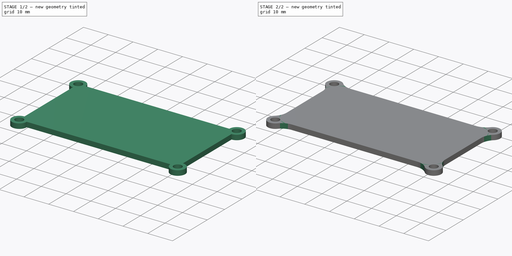
[diagram: build sequence overview — one tinted view per stage of 2, left to right]
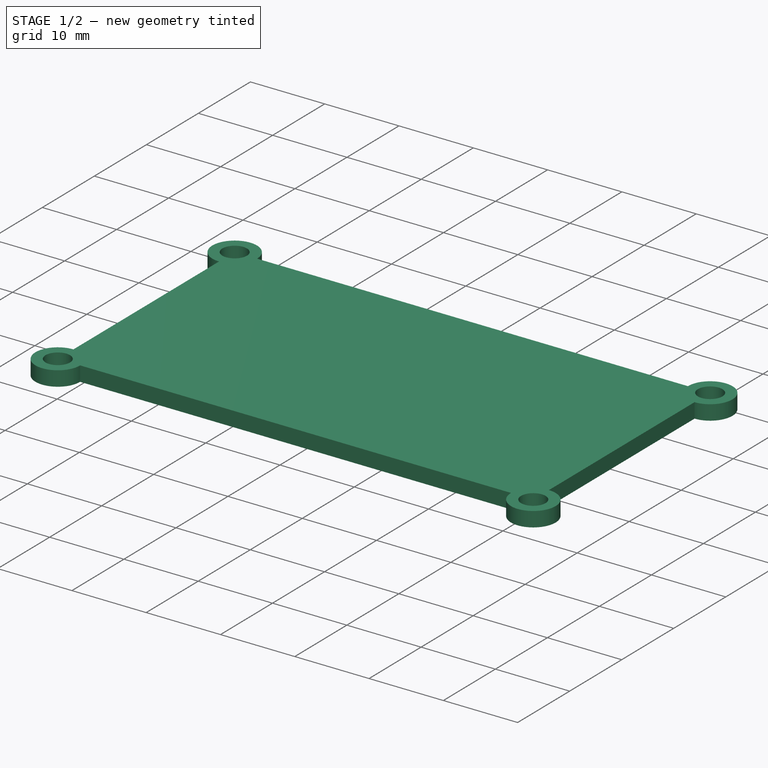
[diagram: stage 1 of 2 — iso view after this stage's code; geometry added in this stage tinted green]
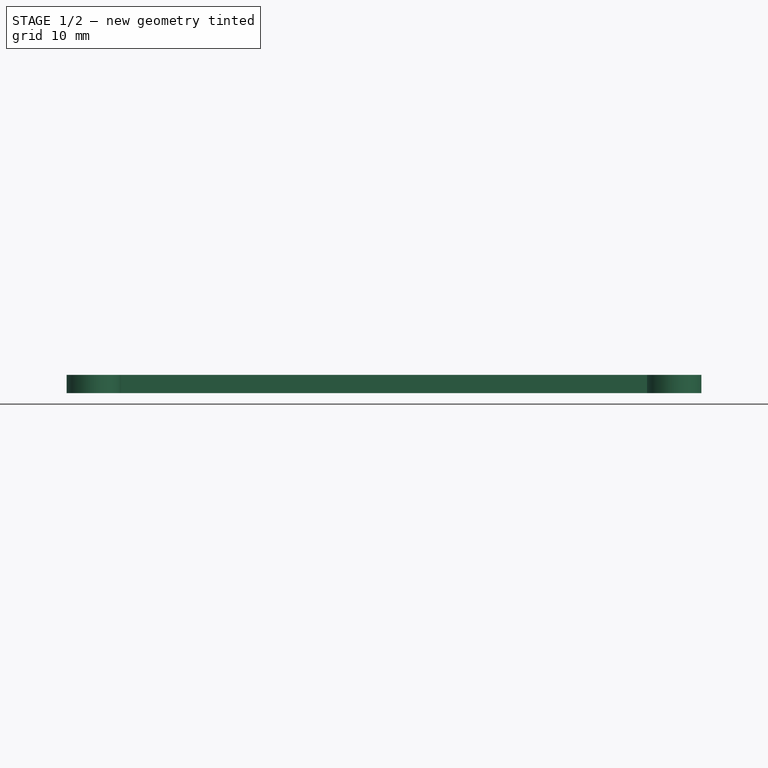
[diagram: stage 1 of 2 — front view after this stage's code; geometry added in this stage tinted green]
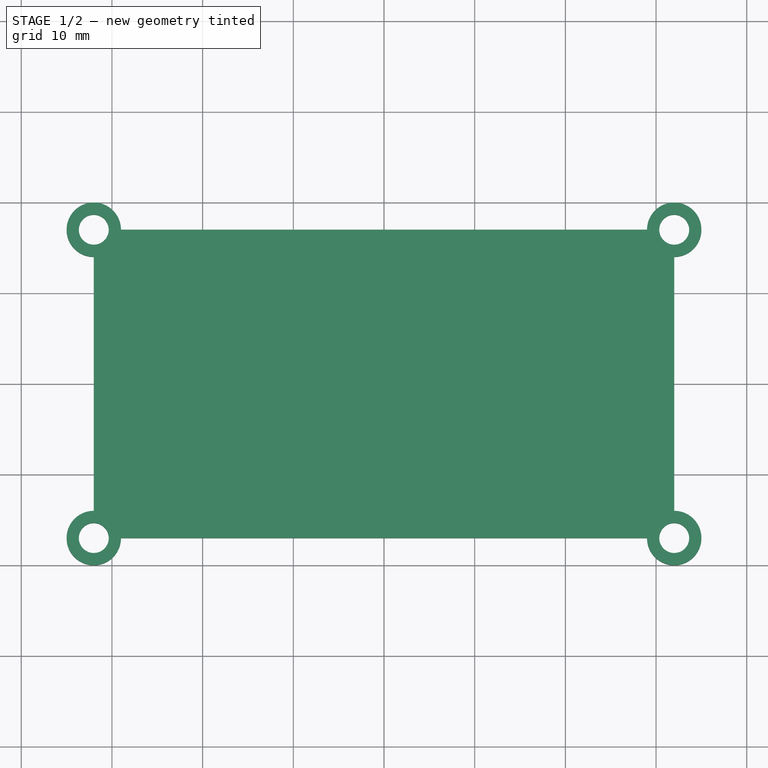
[diagram: stage 1 of 2 — top view after this stage's code; geometry added in this stage tinted green]
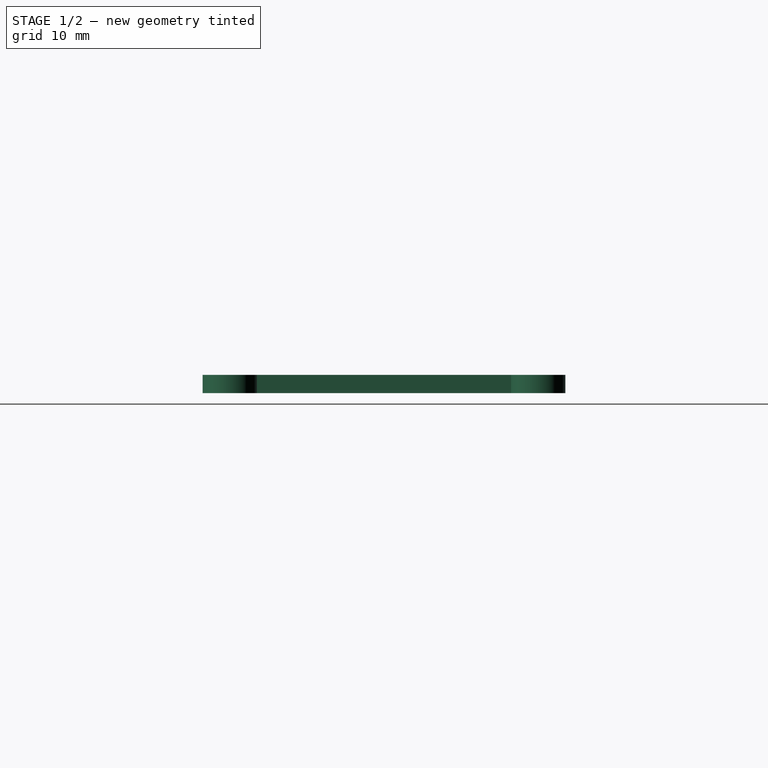
[diagram: stage 1 of 2 — right view after this stage's code; geometry added in this stage tinted green]
FCSTD DOCUMENT  (FreeCAD 0.16R6707 (Git))
Label: BatteryMount
License: All rights reserved
LicenseURL: http://en.wikipedia.org/wiki/All_rights_reserved
objects: Sketcher::SketchObject×1, PartDesign::Pad×1, PartDesign::Fillet×1
note: 4 computed .brp shape members not serialized (recipe doc carries the construction recipe); baked Part::Feature solids carry a one-line shape summary decoded from their .brp

FEATURE [Sketcher::SketchObject] Sketch
  sketch-geometry (16):
    g0: LineSegment [constr] StartX=-32 StartY=17 StartZ=0 EndX=32 EndY=17 EndZ=0
    g1: LineSegment [constr] StartX=32 StartY=17 StartZ=0 EndX=32 EndY=-17 EndZ=0
    g2: LineSegment [constr] StartX=32 StartY=-17 StartZ=0 EndX=-32 EndY=-17 EndZ=0
    g3: LineSegment [constr] StartX=-32 StartY=-17 StartZ=0 EndX=-32 EndY=17 EndZ=0
    g4: Circle CenterX=-32 CenterY=17 CenterZ=0 NormalX=0 NormalY=0 NormalZ=1 Radius=1.65
    g5: Circle CenterX=-32 CenterY=-17 CenterZ=0 NormalX=0 NormalY=0 NormalZ=1 Radius=1.65
    g6: Circle CenterX=32 CenterY=-17 CenterZ=0 NormalX=0 NormalY=0 NormalZ=1 Radius=1.65
    g7: Circle CenterX=32 CenterY=17 CenterZ=0 NormalX=0 NormalY=0 NormalZ=1 Radius=1.65
    g8: LineSegment StartX=-32 StartY=14 StartZ=0 EndX=-32 EndY=-14 EndZ=0
    g9: LineSegment StartX=-29 StartY=-17 StartZ=0 EndX=29 EndY=-17 EndZ=0
    g10: LineSegment StartX=32 StartY=-14 StartZ=0 EndX=32 EndY=14 EndZ=0
    g11: LineSegment StartX=29 StartY=17 StartZ=0 EndX=-29 EndY=17 EndZ=0
    g12: ArcOfCircle CenterX=-32 CenterY=17 CenterZ=0 NormalX=0 NormalY=0 NormalZ=1 Radius=3 StartAngle=0 EndAngle=4.71239
    g13: ArcOfCircle CenterX=-32 CenterY=-17 CenterZ=0 NormalX=0 NormalY=0 NormalZ=1 Radius=3 StartAngle=1.5708 EndAngle=6.28319
    g14: ArcOfCircle CenterX=32 CenterY=-17 CenterZ=0 NormalX=0 NormalY=0 NormalZ=1 Radius=3 StartAngle=3.14159 EndAngle=7.85398
    g15: ArcOfCircle CenterX=32 CenterY=17 CenterZ=0 NormalX=0 NormalY=0 NormalZ=1 Radius=3 StartAngle=4.71239 EndAngle=9.42478
  constraints (43):
    c: Coincident(g0,g1)
    c: Coincident(g1,g2)
    c: Coincident(g2,g3)
    c: Coincident(g3,g0)
    c: Horizontal(g0)
    c: Horizontal(g2)
    c: Vertical(g1)
    c: Vertical(g3)
    c: Symmetric(g2,g0,g-1)
    c: Distance(g0) = 64
    c: Distance(g1) = 34
    c: Coincident(g4,g0)
    c: Coincident(g5,g2)
    c: Coincident(g6,g1)
    c: Coincident(g7,g0)
    c: Equal(g7,g6)
    c: Equal(g6,g5)
    c: Equal(g5,g4)
    c: Radius(g4) = 1.65
    c: PointOnObject(g8,g3)
    c: Vertical(g8)
    c: PointOnObject(g9,g2)
    c: Horizontal(g9)
    c: PointOnObject(g10,g1)
    c: Vertical(g10)
    c: PointOnObject(g11,g0)
    c: Horizontal(g11)
    c: Coincident(g12,g0)
    c: Coincident(g12,g8)
    c: Coincident(g12,g11)
    c: Coincident(g13,g2)
    c: Coincident(g13,g8)
    c: Coincident(g13,g9)
    c: Coincident(g14,g1)
    c: Coincident(g14,g10)
    c: Coincident(g14,g9)
    c: Coincident(g15,g0)
    c: Coincident(g15,g11)
    c: Coincident(g15,g10)
    c: Equal(g14,g15)
    c: Equal(g15,g12)
    c: Equal(g12,g13)
    c: Radius(g12) = 3
FEATURE [PartDesign::Pad] Pad
  Length = 2
  Length2 = 100
  Sketch = -> Sketch
  Type = 0
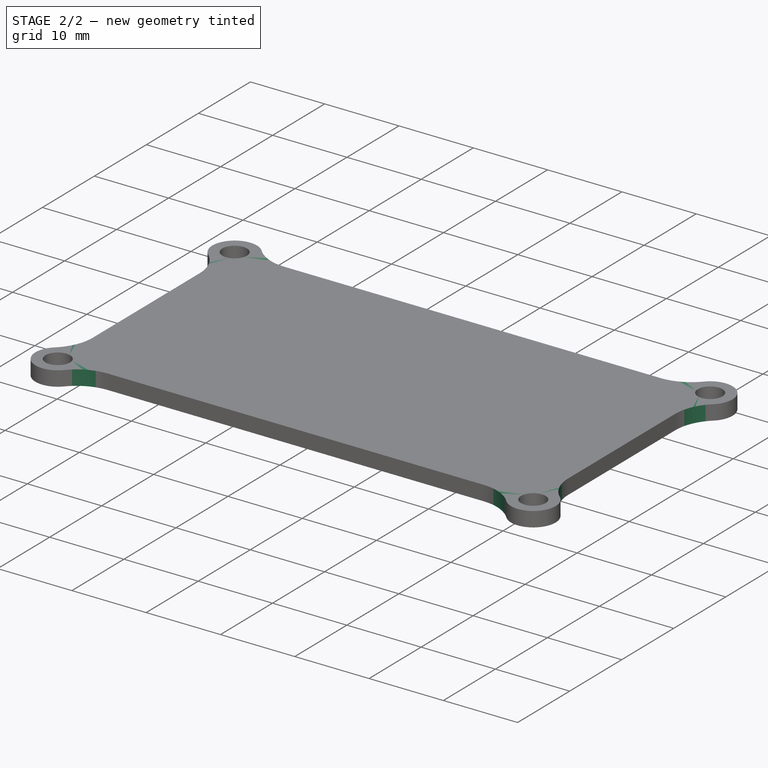
[diagram: stage 2 of 2 — iso view after this stage's code; geometry added in this stage tinted green]
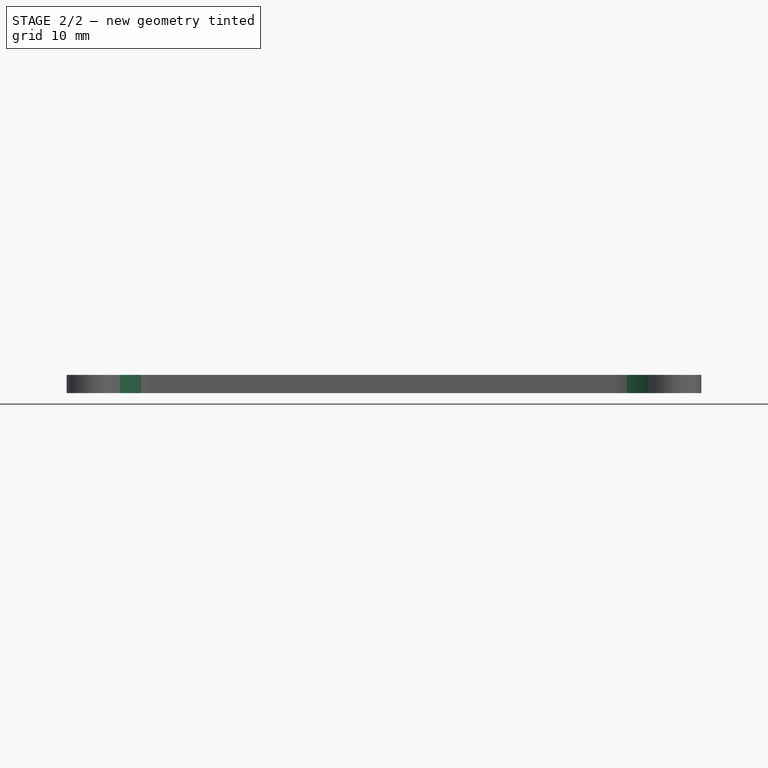
[diagram: stage 2 of 2 — front view after this stage's code; geometry added in this stage tinted green]
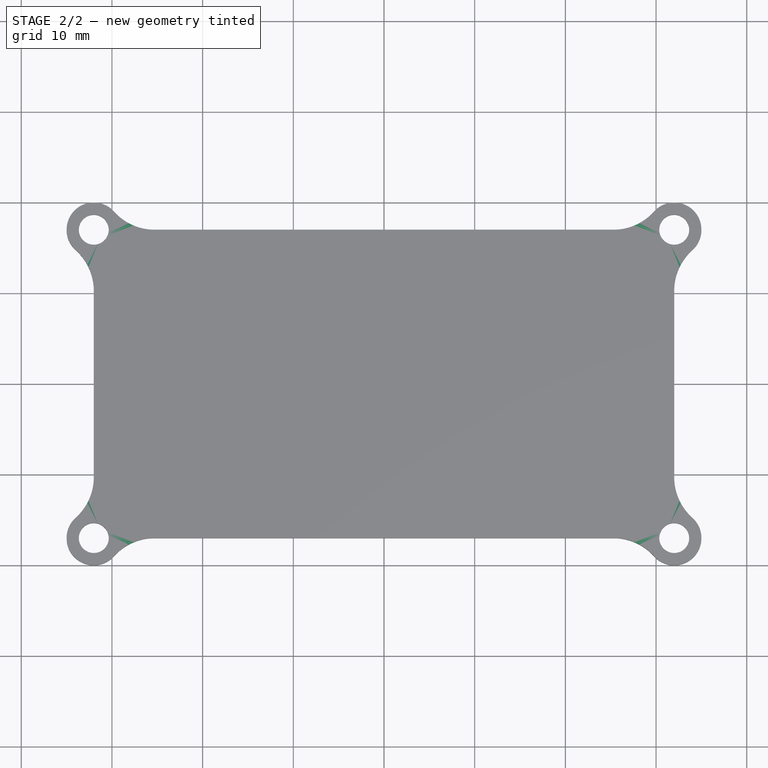
[diagram: stage 2 of 2 — top view after this stage's code; geometry added in this stage tinted green]
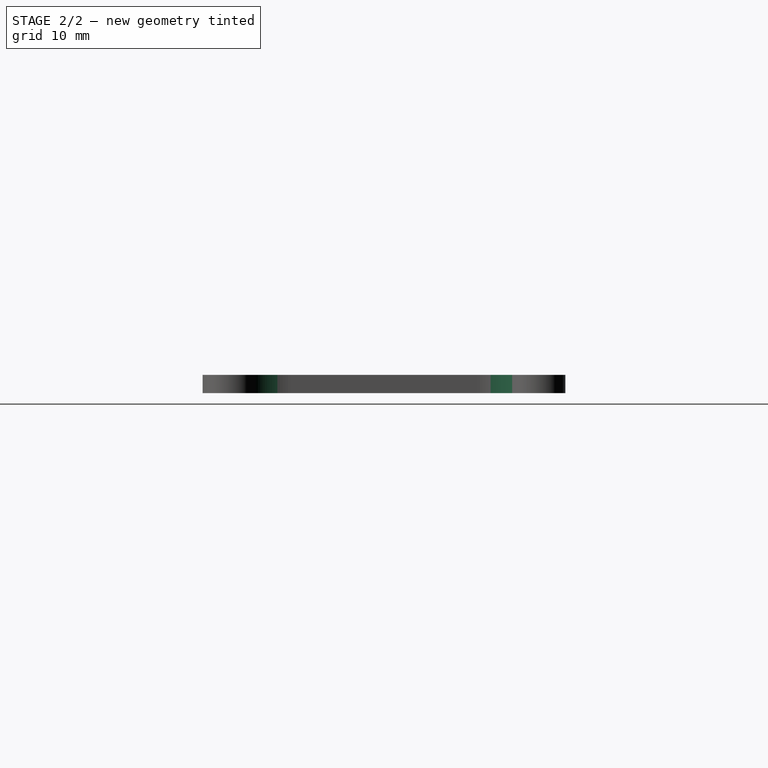
[diagram: stage 2 of 2 — right view after this stage's code; geometry added in this stage tinted green]
FEATURE [PartDesign::Fillet] Fillet
  Base = -> Pad [Edge5,Edge8,Edge11,Edge14,Edge17,Edge20,Edge1,Edge2]
  Radius = 6
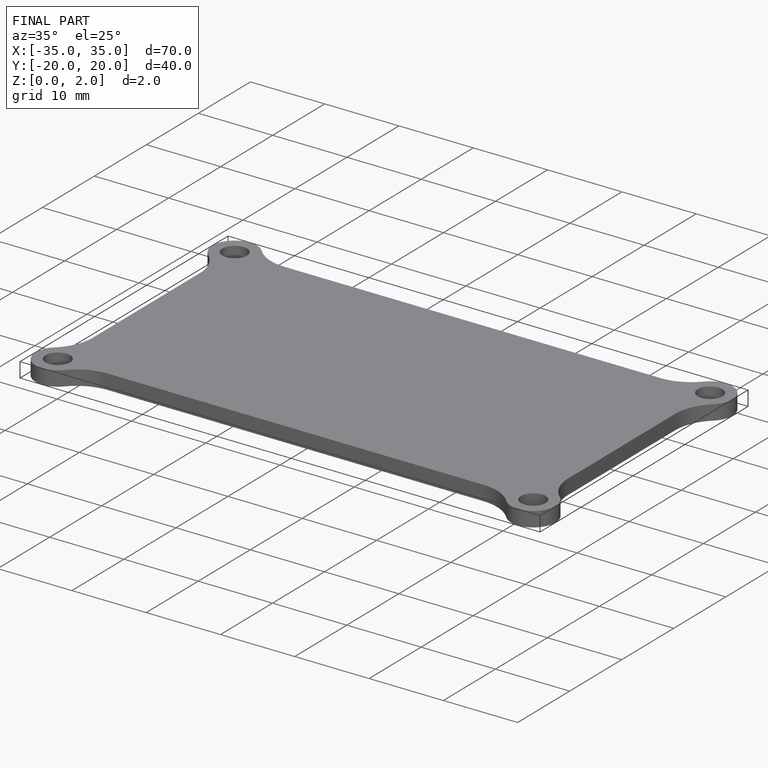
[diagram: finished part — iso view with bounding-box wireframe]
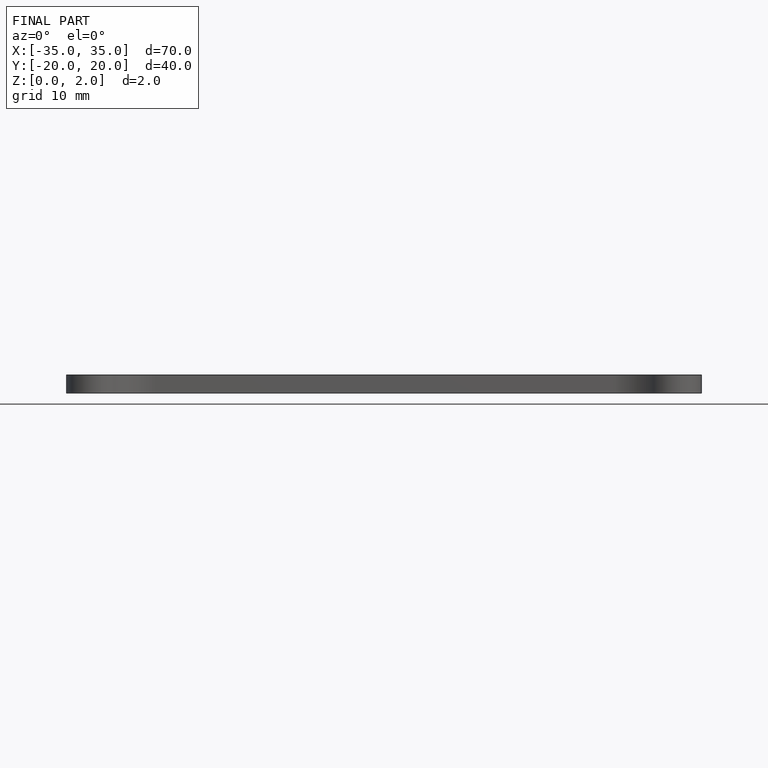
[diagram: finished part — front view with bounding-box wireframe]
